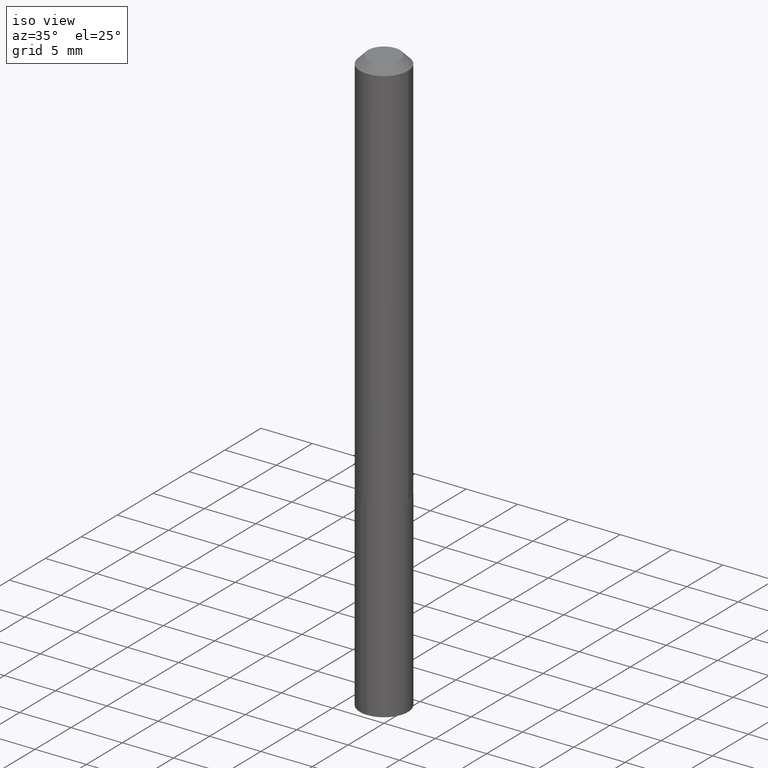
[diagram: clean part render]
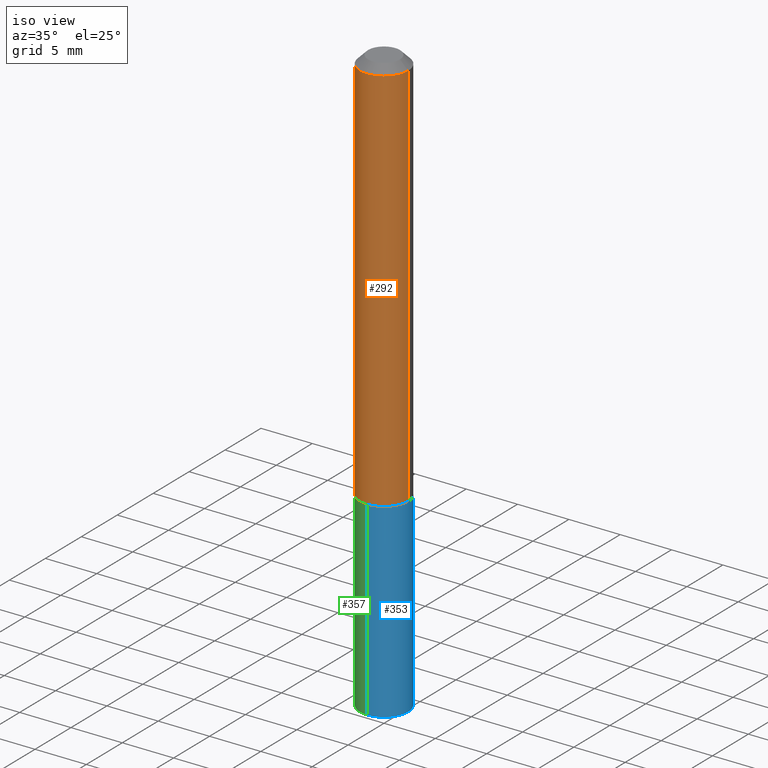
[diagram: same view with three faces highlighted in distinct colors, each labeled with its STEP entity id]
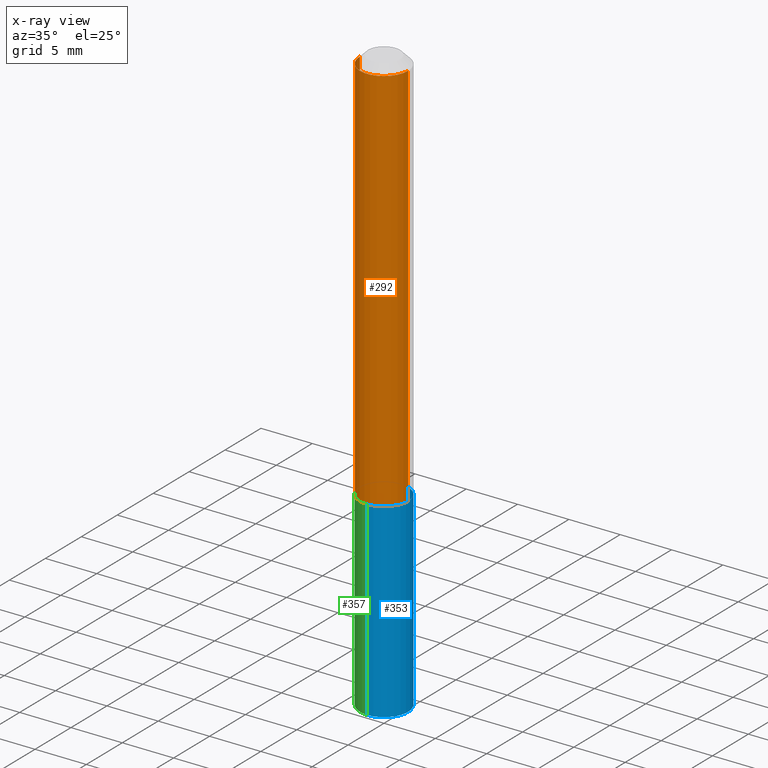
[diagram: x-ray of the same camera — body ghosted, the three highlighted faces saturated]
A machine part, iso view with three faces highlighted in distinct colors.
The next image is the same camera in x-ray (body ghosted, the three faces saturated) — at least one of them is partly hidden behind the body in this view.
Their STEP definitions:

[orange] entity #292 — the highlighted cylindrical surface (edge-blend (fillet) strip) has radius 2.3495 mm, axis along (-0, 0, 1).
#3 = AXIS2_PLACEMENT_3D ( 'NONE', #269, #19, #258 ) ;
#5 = DIRECTION ( 'NONE',  ( 1.000000000000000000, -6.982962677686267499E-15, 4.876176775795936353E-29 ) ) ;
#15 = DIRECTION ( 'NONE',  ( 1.000000000000000000, -6.982962677686266711E-15, 0.000000000000000000 ) ) ;
#19 = DIRECTION ( 'NONE',  ( -2.445468806185136597E-29, 3.491481338843145583E-15, 1.000000000000000000 ) ) ;
#37 = VERTEX_POINT ( 'NONE', #234 ) ;
#42 = DIRECTION ( 'NONE',  ( -2.445468806185136597E-29, 3.491481338843145583E-15, 1.000000000000000000 ) ) ;
#53 = CARTESIAN_POINT ( 'NONE',  ( 0.000000000000000000, 0.000000000000000000, 0.000000000000000000 ) ) ;
#62 = EDGE_CURVE ( 'NONE', #379, #319, #347, .T. ) ;
#74 = EDGE_CURVE ( 'NONE', #379, #316, #291, .T. ) ;
#80 = CARTESIAN_POINT ( 'NONE',  ( -0.09250000000000008216, 6.572520305780932557E-16, -4.550014958485792374E-30 ) ) ;
#81 = CARTESIAN_POINT ( 'NONE',  ( -0.09249999999999999889, -2.056239978937328693E-15, -0.03125000000000020123 ) ) ;
#99 = LINE ( 'NONE', #158, #111 ) ;
#111 = VECTOR ( 'NONE', #149, 39.37007874015748143 ) ;
#143 = AXIS2_PLACEMENT_3D ( 'NONE', #375, #42, #15 ) ;
#149 = DIRECTION ( 'NONE',  ( -2.445468806185136877E-29, 3.491481338843145188E-15, 1.000000000000000000 ) ) ;
#158 = CARTESIAN_POINT ( 'NONE',  ( 0.09250000000000008216, -6.459240476859802821E-16, 4.510463517611244952E-30 ) ) ;
#164 = VECTOR ( 'NONE', #222, 39.37007874015748143 ) ;
#170 = EDGE_CURVE ( 'NONE', #316, #37, #332, .T. ) ;
#174 = CYLINDRICAL_SURFACE ( 'NONE', #341, 0.09250000000000008216 ) ;
#180 = ORIENTED_EDGE ( 'NONE', *, *, #170, .F. ) ;
#191 = EDGE_LOOP ( 'NONE', ( #261, #342, #359, #180 ) ) ;
#222 = DIRECTION ( 'NONE',  ( -2.445468806185136877E-29, 3.491481338843145188E-15, 1.000000000000000000 ) ) ;
#229 = EDGE_CURVE ( 'NONE', #319, #37, #99, .T. ) ;
#234 = CARTESIAN_POINT ( 'NONE',  ( 0.09249999999999999889, -7.550328395248286925E-16, -0.03125000000000020123 ) ) ;
#236 = CARTESIAN_POINT ( 'NONE',  ( 0.09250000000000017930, -5.963799274877977150E-15, -1.523100000000000120 ) ) ;
#241 = FACE_OUTER_BOUND ( 'NONE', #191, .T. ) ;
#258 = DIRECTION ( 'NONE',  ( 1.000000000000000000, -6.982962677686272233E-15, 0.000000000000000000 ) ) ;
#261 = ORIENTED_EDGE ( 'NONE', *, *, #74, .F. ) ;
#269 = CARTESIAN_POINT ( 'NONE',  ( 3.724693538700582458E-29, -5.317875227191995586E-15, -1.523100000000000120 ) ) ;
#272 = CARTESIAN_POINT ( 'NONE',  ( -0.09250000000000017930, -4.660623196613901936E-15, -1.523100000000000120 ) ) ;
#291 = LINE ( 'NONE', #80, #164 ) ;
#292 = ADVANCED_FACE ( 'NONE', ( #241 ), #174, .T. ) ;
#316 = VERTEX_POINT ( 'NONE', #81 ) ;
#319 = VERTEX_POINT ( 'NONE', #236 ) ;
#332 = CIRCLE ( 'NONE', #143, 0.09249999999999999889 ) ;
#341 = AXIS2_PLACEMENT_3D ( 'NONE', #53, #364, #5 ) ;
#342 = ORIENTED_EDGE ( 'NONE', *, *, #62, .T. ) ;
#347 = CIRCLE ( 'NONE', #3, 0.09250000000000017930 ) ;
#359 = ORIENTED_EDGE ( 'NONE', *, *, #229, .T. ) ;
#364 = DIRECTION ( 'NONE',  ( -2.445468806185136597E-29, 3.491481338843145583E-15, 1.000000000000000000 ) ) ;
#375 = CARTESIAN_POINT ( 'NONE',  ( 7.642090019328600035E-31, -1.091087918388489897E-16, -0.03125000000000020123 ) ) ;
#379 = VERTEX_POINT ( 'NONE', #272 ) ;

[blue] entity #353 — the highlighted cylindrical surface (edge-blend (fillet) strip) has radius 2.3495 mm, axis along (-0, 0, 1).
#6 = DIRECTION ( 'NONE',  ( -6.982962677686265922E-15, -1.000000000000000000, 2.953349182339743999E-15 ) ) ;
#8 = CIRCLE ( 'NONE', #311, 0.09250000000000002665 ) ;
#16 = DIRECTION ( 'NONE',  ( -6.982962677686265133E-15, -1.000000000000000000, 2.953349182339743210E-15 ) ) ;
#29 = FACE_OUTER_BOUND ( 'NONE', #274, .T. ) ;
#38 = DIRECTION ( 'NONE',  ( -2.432666461366210760E-29, 3.509815025288062434E-15, 1.000000000000000000 ) ) ;
#43 = DIRECTION ( 'NONE',  ( -2.432666461366210760E-29, 3.509815025288062434E-15, 1.000000000000000000 ) ) ;
#45 = CARTESIAN_POINT ( 'NONE',  ( 3.725916273103674139E-29, -5.319620967861417089E-15, -1.523600000000000065 ) ) ;
#51 = VERTEX_POINT ( 'NONE', #362 ) ;
#68 = VECTOR ( 'NONE', #38, 39.37007874015748143 ) ;
#69 = VERTEX_POINT ( 'NONE', #329 ) ;
#73 = AXIS2_PLACEMENT_3D ( 'NONE', #173, #245, #317 ) ;
#79 = EDGE_CURVE ( 'NONE', #214, #51, #82, .T. ) ;
#82 = CIRCLE ( 'NONE', #215, 0.09249999999999999889 ) ;
#84 = CYLINDRICAL_SURFACE ( 'NONE', #73, 0.09249999999999999889 ) ;
#97 = CARTESIAN_POINT ( 'NONE',  ( -6.459240476859423182E-16, -0.09250000000000532796, -1.523599999999999843 ) ) ;
#116 = CARTESIAN_POINT ( 'NONE',  ( 6.572520305781298391E-16, 0.09249999999999466982, -1.523600000000000287 ) ) ;
#132 = CARTESIAN_POINT ( 'NONE',  ( 5.503550464111944326E-29, -7.884365166111527938E-15, -2.254334862028694708 ) ) ;
#171 = VECTOR ( 'NONE', #240, 39.37007874015748143 ) ;
#173 = CARTESIAN_POINT ( 'NONE',  ( 3.725916273103674139E-29, -5.319620967861417089E-15, -1.523600000000000065 ) ) ;
#184 = VERTEX_POINT ( 'NONE', #219 ) ;
#187 = ORIENTED_EDGE ( 'NONE', *, *, #79, .F. ) ;
#201 = EDGE_CURVE ( 'NONE', #184, #214, #284, .T. ) ;
#214 = VERTEX_POINT ( 'NONE', #254 ) ;
#215 = AXIS2_PLACEMENT_3D ( 'NONE', #45, #358, #6 ) ;
#219 = CARTESIAN_POINT ( 'NONE',  ( -6.459240476859246674E-16, -0.09250000000000789535, -2.254334862028694264 ) ) ;
#233 = ORIENTED_EDGE ( 'NONE', *, *, #384, .T. ) ;
#240 = DIRECTION ( 'NONE',  ( -2.432666461366210760E-29, 3.509815025288062434E-15, 1.000000000000000000 ) ) ;
#245 = DIRECTION ( 'NONE',  ( -2.432666461366210760E-29, 3.509815025288062434E-15, 1.000000000000000000 ) ) ;
#246 = EDGE_CURVE ( 'NONE', #184, #69, #8, .T. ) ;
#254 = CARTESIAN_POINT ( 'NONE',  ( -6.459240476859423182E-16, -0.09250000000000532796, -1.523599999999999843 ) ) ;
#274 = EDGE_LOOP ( 'NONE', ( #277, #233, #187, #373 ) ) ;
#277 = ORIENTED_EDGE ( 'NONE', *, *, #246, .T. ) ;
#284 = LINE ( 'NONE', #97, #68 ) ;
#311 = AXIS2_PLACEMENT_3D ( 'NONE', #132, #43, #16 ) ;
#317 = DIRECTION ( 'NONE',  ( -6.982962677686265922E-15, -1.000000000000000000, 2.953349182339743999E-15 ) ) ;
#329 = CARTESIAN_POINT ( 'NONE',  ( 6.572520305781476871E-16, 0.09249999999999213018, -2.254334862028694708 ) ) ;
#353 = ADVANCED_FACE ( 'NONE', ( #29 ), #84, .T. ) ;
#358 = DIRECTION ( 'NONE',  ( -2.432666461366210760E-29, 3.509815025288062434E-15, 1.000000000000000000 ) ) ;
#362 = CARTESIAN_POINT ( 'NONE',  ( 6.572520305781478843E-16, 0.09249999999999466982, -1.523600000000000287 ) ) ;
#368 = LINE ( 'NONE', #116, #171 ) ;
#373 = ORIENTED_EDGE ( 'NONE', *, *, #201, .F. ) ;
#384 = EDGE_CURVE ( 'NONE', #69, #51, #368, .T. ) ;

[green] entity #357 — the highlighted cylindrical surface (edge-blend (fillet) strip) has radius 2.3495 mm, axis along (-0, 0, 1).
#10 = DIRECTION ( 'NONE',  ( -2.432666461366210760E-29, 3.509815025288062434E-15, 1.000000000000000000 ) ) ;
#11 = ORIENTED_EDGE ( 'NONE', *, *, #201, .T. ) ;
#20 = ORIENTED_EDGE ( 'NONE', *, *, #384, .F. ) ;
#38 = DIRECTION ( 'NONE',  ( -2.432666461366210760E-29, 3.509815025288062434E-15, 1.000000000000000000 ) ) ;
#46 = DIRECTION ( 'NONE',  ( -2.432666461366210760E-29, 3.509815025288062434E-15, 1.000000000000000000 ) ) ;
#51 = VERTEX_POINT ( 'NONE', #362 ) ;
#59 = DIRECTION ( 'NONE',  ( -2.432666461366210760E-29, 3.509815025288062434E-15, 1.000000000000000000 ) ) ;
#68 = VECTOR ( 'NONE', #38, 39.37007874015748143 ) ;
#69 = VERTEX_POINT ( 'NONE', #329 ) ;
#97 = CARTESIAN_POINT ( 'NONE',  ( -6.459240476859423182E-16, -0.09250000000000532796, -1.523599999999999843 ) ) ;
#110 = AXIS2_PLACEMENT_3D ( 'NONE', #323, #46, #281 ) ;
#113 = ORIENTED_EDGE ( 'NONE', *, *, #334, .F. ) ;
#116 = CARTESIAN_POINT ( 'NONE',  ( 6.572520305781298391E-16, 0.09249999999999466982, -1.523600000000000287 ) ) ;
#120 = DIRECTION ( 'NONE',  ( -6.982962677686265922E-15, -1.000000000000000000, 2.953349182339743999E-15 ) ) ;
#122 = FACE_OUTER_BOUND ( 'NONE', #130, .T. ) ;
#127 = ORIENTED_EDGE ( 'NONE', *, *, #223, .T. ) ;
#130 = EDGE_LOOP ( 'NONE', ( #20, #127, #11, #113 ) ) ;
#141 = DIRECTION ( 'NONE',  ( -6.982962677686265922E-15, -1.000000000000000000, 2.953349182339743999E-15 ) ) ;
#171 = VECTOR ( 'NONE', #240, 39.37007874015748143 ) ;
#183 = CYLINDRICAL_SURFACE ( 'NONE', #268, 0.09249999999999999889 ) ;
#184 = VERTEX_POINT ( 'NONE', #219 ) ;
#201 = EDGE_CURVE ( 'NONE', #184, #214, #284, .T. ) ;
#213 = CARTESIAN_POINT ( 'NONE',  ( 3.725916273103674139E-29, -5.319620967861417089E-15, -1.523600000000000065 ) ) ;
#214 = VERTEX_POINT ( 'NONE', #254 ) ;
#219 = CARTESIAN_POINT ( 'NONE',  ( -6.459240476859246674E-16, -0.09250000000000789535, -2.254334862028694264 ) ) ;
#223 = EDGE_CURVE ( 'NONE', #69, #184, #289, .T. ) ;
#240 = DIRECTION ( 'NONE',  ( -2.432666461366210760E-29, 3.509815025288062434E-15, 1.000000000000000000 ) ) ;
#254 = CARTESIAN_POINT ( 'NONE',  ( -6.459240476859423182E-16, -0.09250000000000532796, -1.523599999999999843 ) ) ;
#268 = AXIS2_PLACEMENT_3D ( 'NONE', #305, #10, #141 ) ;
#281 = DIRECTION ( 'NONE',  ( -6.982962677686265133E-15, -1.000000000000000000, 2.953349182339743210E-15 ) ) ;
#284 = LINE ( 'NONE', #97, #68 ) ;
#289 = CIRCLE ( 'NONE', #110, 0.09250000000000002665 ) ;
#305 = CARTESIAN_POINT ( 'NONE',  ( 3.725916273103674139E-29, -5.319620967861417089E-15, -1.523600000000000065 ) ) ;
#323 = CARTESIAN_POINT ( 'NONE',  ( 5.503550464111944326E-29, -7.884365166111527938E-15, -2.254334862028694708 ) ) ;
#329 = CARTESIAN_POINT ( 'NONE',  ( 6.572520305781476871E-16, 0.09249999999999213018, -2.254334862028694708 ) ) ;
#334 = EDGE_CURVE ( 'NONE', #51, #214, #369, .T. ) ;
#357 = ADVANCED_FACE ( 'NONE', ( #122 ), #183, .T. ) ;
#361 = AXIS2_PLACEMENT_3D ( 'NONE', #213, #59, #120 ) ;
#362 = CARTESIAN_POINT ( 'NONE',  ( 6.572520305781478843E-16, 0.09249999999999466982, -1.523600000000000287 ) ) ;
#368 = LINE ( 'NONE', #116, #171 ) ;
#369 = CIRCLE ( 'NONE', #361, 0.09249999999999999889 ) ;
#384 = EDGE_CURVE ( 'NONE', #69, #51, #368, .T. ) ;